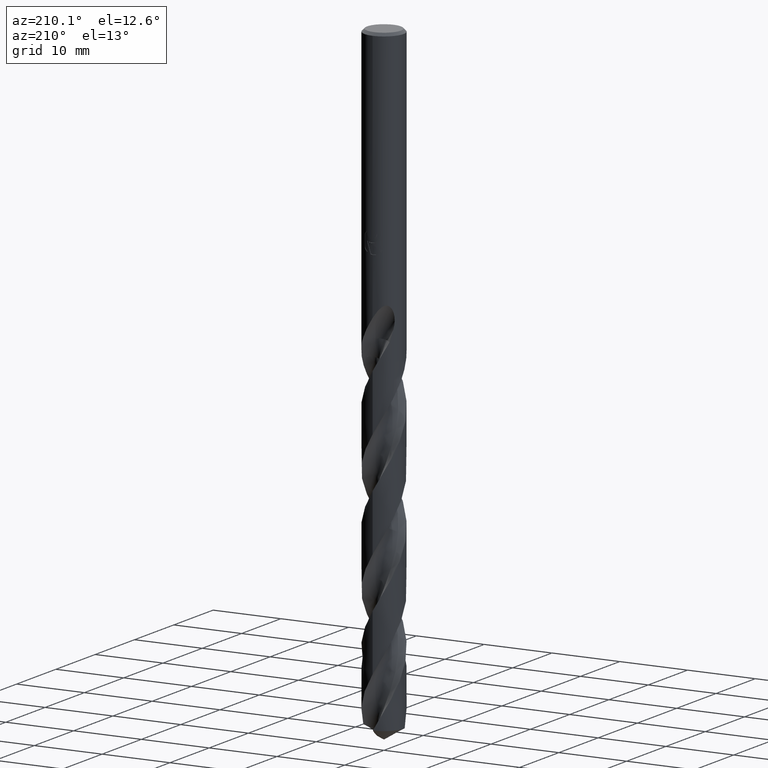
[diagram: clean part render]
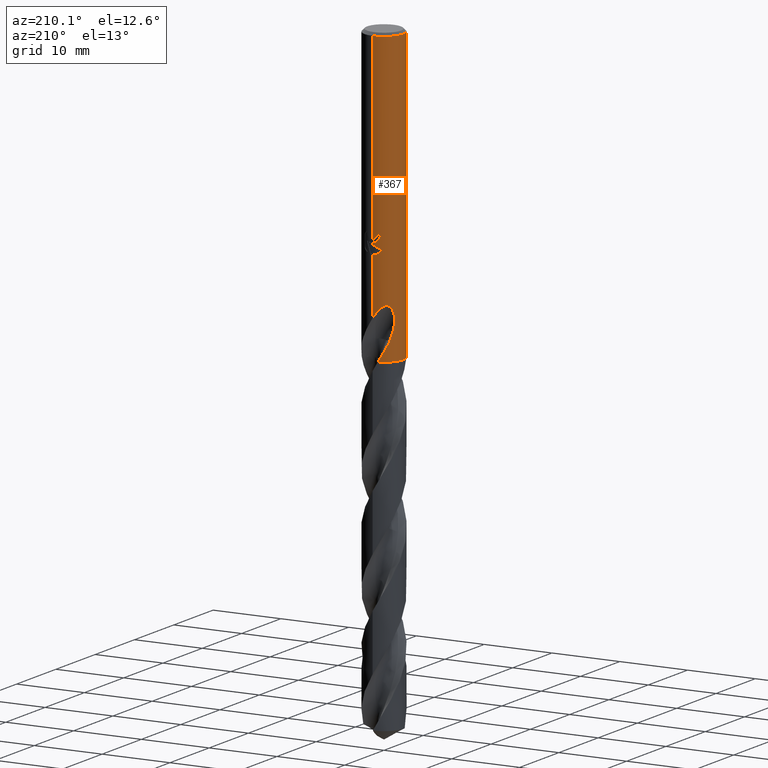
[diagram: same view with one face highlighted and labeled with its STEP entity id]
A machine part, auxiliary view. The second image highlights one B-rep face of the part: STEP entity #367.
In plain terms, the highlighted cylindrical surface (edge-blend (fillet) strip) has radius 2.9 mm, axis along (-0, -0, 1).
Its self-contained STEP definition (entity closure, byte-faithful):
#291=EDGE_CURVE('',#657,#321,#814,.T.);
#305=VERTEX_POINT('',#828);
#307=EDGE_CURVE('',#725,#371,#830,.T.);
#321=VERTEX_POINT('',#847);
#329=VERTEX_POINT('',#855);
#363=EDGE_CURVE('',#589,#457,#892,.T.);
#367=ADVANCED_FACE('',(#897),#898,.T.);
#371=VERTEX_POINT('',#902);
#401=VERTEX_POINT('',#936);
#405=EDGE_CURVE('',#457,#441,#941,.T.);
#423=VERTEX_POINT('',#961);
#425=EDGE_CURVE('',#305,#687,#963,.T.);
#441=VERTEX_POINT('',#980);
#443=EDGE_CURVE('',#321,#329,#982,.T.);
#457=VERTEX_POINT('',#996);
#473=EDGE_CURVE('',#741,#537,#1013,.T.);
#499=EDGE_CURVE('',#607,#677,#1042,.T.);
#505=VERTEX_POINT('',#1048);
#537=VERTEX_POINT('',#1083);
#545=EDGE_CURVE('',#423,#329,#1091,.T.);
#557=EDGE_CURVE('',#687,#505,#1104,.T.);
#563=EDGE_CURVE('',#537,#657,#1110,.T.);
#589=VERTEX_POINT('',#1138);
#599=EDGE_CURVE('',#371,#401,#1149,.T.);
#601=EDGE_CURVE('',#423,#607,#1151,.T.);
#607=VERTEX_POINT('',#1158);
#653=EDGE_CURVE('',#677,#725,#1210,.T.);
#657=VERTEX_POINT('',#1214);
#669=EDGE_CURVE('',#505,#741,#1228,.T.);
#677=VERTEX_POINT('',#1236);
#687=VERTEX_POINT('',#1248);
#705=EDGE_CURVE('',#401,#589,#1267,.T.);
#725=VERTEX_POINT('',#1288);
#741=VERTEX_POINT('',#1305);
#765=EDGE_CURVE('',#441,#305,#1332,.T.);
#814=B_SPLINE_CURVE_WITH_KNOTS('',3,(#1380,#1381,#1382,#1383),.UNSPECIFIED.,.F.,.F.,(4,4),(0.0,1.66668771534072),.UNSPECIFIED.);
#828=CARTESIAN_POINT('',(2.06254272401591E-016,2.9,-27.5000801551881));
#830=CIRCLE('',#1405,2.9);
#847=CARTESIAN_POINT('',(-2.01572429288359,2.08491140700965,-40.3898));
#855=CARTESIAN_POINT('',(-0.711667829307871,2.81132155768923,-43.0));
#892=B_SPLINE_CURVE_WITH_KNOTS('',3,(#3279,#3280,#3281,#3282,#3283,#3284,#3285,#3286,#3287,#3288,#3289,#3290,#3291,#3292,#3293,#3294,#3295,#3296,#3297,#3298,#3299,#3300,#3301,#3302,#3303,#3304,#3305),.UNSPECIFIED.,.F.,.F.,(4,2,3,2,2,2,2,2,2,2,2,2,4),(-0.544430425757942,-0.272215212878971,0.0,0.272215212878969,0.544430425757938,0.818316912062376,1.09220339836681,1.36319106770126,1.63417873703571,1.90601948749289,2.17786023795006,2.44970098840723,2.7215417388644),.UNSPECIFIED.);
#897=FACE_OUTER_BOUND('',#3310,.T.);
#898=CYLINDRICAL_SURFACE('',#3311,2.9);
#902=CARTESIAN_POINT('',(0.0,2.9,-0.399999999999999));
#936=CARTESIAN_POINT('',(3.1168337840855E-015,2.9,-27.0232688117743));
#941=CIRCLE('',#3521,2.9);
#961=CARTESIAN_POINT('',(-2.74120500778192,-0.946464529346626,-43.0));
#963=LINE('',#4231,#4232);
#980=CARTESIAN_POINT('',(-1.0350734039088,2.70898930387712,-26.3171221986971));
#982=B_SPLINE_CURVE_WITH_KNOTS('',3,(#4496,#4497,#4498,#4499,#4500,#4501,#4502,#4503,#4504,#4505),.UNSPECIFIED.,.F.,.F.,(4,2,2,2,4),(0.0,0.778750457868254,1.48585457779052,2.12632077784442,2.76428892109152),.UNSPECIFIED.);
#996=CARTESIAN_POINT('',(-0.562333990228013,2.84495702664104,-26.3171221986971));
#1013=LINE('',#4579,#4580);
#1042=B_SPLINE_CURVE_WITH_KNOTS('',3,(#5178,#5179,#5180,#5181,#5182,#5183,#5184,#5185,#5186,#5187,#5188,#5189,#5190,#5191,#5192,#5193,#5194,#5195,#5196,#5197,#5198,#5199,#5200,#5201,#5202,#5203,#5204,#5205,#5206,#5207),.UNSPECIFIED.,.F.,.F.,(4,2,2,2,2,2,2,2,2,2,2,2,2,2,4),(0.0,1.42083954617594,2.19665046974081,2.89934003743982,3.71569641668539,4.69632698441086,5.54625631413262,5.93141498280162,6.21291901045327,6.47930414935623,6.81722957885789,7.31162818944072,8.01447394372956,8.47441253554976,8.95777676593161),.UNSPECIFIED.);
#1048=CARTESIAN_POINT('',(-1.337052752443,2.57338103225788,-28.3720803908795));
#1083=CARTESIAN_POINT('',(-8.60822456610726E-013,2.9,-37.3071607577198));
#1091=CIRCLE('',#6331,2.9);
#1104=ELLIPSE('',#6474,3.2332924529243,2.9);
#1110=B_SPLINE_CURVE_WITH_KNOTS('',3,(#6553,#6554,#6555,#6556,#6557,#6558,#6559,#6560,#6561,#6562,#6563,#6564,#6565,#6566,#6567,#6568,#6569,#6570,#6571,#6572,#6573,#6574,#6575,#6576,#6577,#6578,#6579,#6580,#6581,#6582),.UNSPECIFIED.,.F.,.F.,(4,2,2,2,2,2,2,2,2,2,2,2,2,2,4),(0.0,1.42083954617593,2.19665046974083,2.89934003744003,3.71569641668575,4.6963269844112,5.546256314133,5.93141498280203,6.2129190104538,6.47930414935694,6.81722957885879,7.31162818944434,8.01447394374062,8.47441253556545,8.95777676595213),.UNSPECIFIED.);
#1138=CARTESIAN_POINT('',(-0.486378944383046,2.85892209100927,-26.6432837483006));
#1149=LINE('',#6751,#6752);
#1151=B_SPLINE_CURVE_WITH_KNOTS('',3,(#6755,#6756,#6757,#6758,#6759,#6760,#6761,#6762,#6763,#6764),.UNSPECIFIED.,.F.,.F.,(4,2,2,2,4),(0.0,0.382410701119258,1.70511081106497,2.27138613274808,2.9969723209163),.UNSPECIFIED.);
#1158=CARTESIAN_POINT('',(-1.84792547564619,-2.23498801707253,-40.3898));
#1210=LINE('',#9225,#9226);
#1214=CARTESIAN_POINT('',(-2.35956227351357,1.68596141041587,-38.8018173349643));
#1228=B_SPLINE_CURVE_WITH_KNOTS('',3,(#9247,#9248,#9249,#9250,#9251,#9252,#9253,#9254,#9255,#9256,#9257,#9258,#9259,#9260,#9261,#9262),.UNSPECIFIED.,.F.,.F.,(4,2,2,2,2,2,2,4),(5.67214035143818,6.30408266405433,6.61911561083196,6.93414855760959,7.24918150438723,7.56421445116486,7.87774285193221,8.19127125269955),.UNSPECIFIED.);
#1236=CARTESIAN_POINT('',(8.57380765234388E-013,-2.9,-37.3071607577198));
#1248=CARTESIAN_POINT('',(-5.33762488795289E-016,2.9,-27.7128911336578));
#1267=B_SPLINE_CURVE_WITH_KNOTS('',3,(#10119,#10120,#10121,#10122,#10123,#10124,#10125,#10126,#10127,#10128,#10129,#10130,#10131,#10132,#10133,#10134,#10135,#10136,#10137,#10138,#10139,#10140,#10141,#10142,#10143,#10144,#10145),.UNSPECIFIED.,.F.,.F.,(4,2,3,2,2,2,2,2,2,2,2,2,4),(-0.544430425757942,-0.272215212878971,0.0,0.272215212878969,0.544430425757938,0.818316912062376,1.09220339836681,1.36319106770126,1.63417873703571,1.90601948749289,2.17786023795006,2.44970098840723,2.7215417388644),.UNSPECIFIED.);
#1288=CARTESIAN_POINT('',(3.55135842608489E-016,-2.9,-0.399999999999999));
#1305=CARTESIAN_POINT('',(-1.44945831354929E-017,2.9,-29.0310253601033));
#1332=B_SPLINE_CURVE_WITH_KNOTS('',3,(#12023,#12024,#12025,#12026,#12027,#12028,#12029,#12030,#12031,#12032,#12033,#12034,#12035,#12036),.UNSPECIFIED.,.F.,.F.,(4,2,2,2,2,2,4),(3.16342687816,3.61440887281233,4.06539086746466,4.51637286211699,4.96437759003098,5.41238231794496,5.8681502726509),.UNSPECIFIED.);
#1380=CARTESIAN_POINT('',(-2.35956227356619,1.68596141034223,-38.8018173349932));
#1381=CARTESIAN_POINT('',(-2.26606866372252,1.8168090046308,-39.3335951298948));
#1382=CARTESIAN_POINT('',(-2.15338387416364,1.95182001463611,-39.8685375125083));
#1383=CARTESIAN_POINT('',(-2.01572429288359,2.08491140700965,-40.3898));
#1405=AXIS2_PLACEMENT_3D('',#12282,#12283,#12284);
#3279=CARTESIAN_POINT('',(0.665676548324101,2.82256527524366,-25.8141513292089));
#3280=CARTESIAN_POINT('',(0.728863694232988,2.80766315710453,-25.8775450945214));
#3281=CARTESIAN_POINT('',(0.783893212152744,2.79230564675326,-25.9578619064315));
#3282=CARTESIAN_POINT('',(0.857175719177571,2.7706875010605,-26.1345175781973));
#3283=CARTESIAN_POINT('',(0.875400981188567,2.76471935684874,-26.2309036082938));
#3284=CARTESIAN_POINT('',(0.875400981188567,2.76471935684874,-26.3216420125868));
#3285=CARTESIAN_POINT('',(0.875400981188567,2.76471935684874,-26.4123804168798));
#3286=CARTESIAN_POINT('',(0.857175719177571,2.7706875010605,-26.5087664469763));
#3287=CARTESIAN_POINT('',(0.783893212152744,2.79230564675326,-26.685422118742));
#3288=CARTESIAN_POINT('',(0.728863694232987,2.80766315710453,-26.7657389306522));
#3289=CARTESIAN_POINT('',(0.60210146304668,2.83755888538195,-26.8929156691917));
#3290=CARTESIAN_POINT('',(0.521571754956642,2.85411813914344,-26.9483263198779));
#3291=CARTESIAN_POINT('',(0.344388193992535,2.88087212822545,-27.0221413287664));
#3292=CARTESIAN_POINT('',(0.247688805712561,2.89084505344222,-27.0405166027747));
#3293=CARTESIAN_POINT('',(0.0663288400845516,2.90064817817,-27.0405166027747));
#3294=CARTESIAN_POINT('',(-0.0299223467702433,2.90119712730522,-27.0224882342443));
#3295=CARTESIAN_POINT('',(-0.206863595966666,2.8939674447602,-26.9492535743946));
#3296=CARTESIAN_POINT('',(-0.287567535567111,2.88642047926432,-26.8940581260475));
#3297=CARTESIAN_POINT('',(-0.415170553794711,2.87084963933989,-26.7667187450904));
#3298=CARTESIAN_POINT('',(-0.47057995685651,2.8618090960253,-26.6859551503447));
#3299=CARTESIAN_POINT('',(-0.544174942931738,2.84873137693834,-26.5087356809639));
#3300=CARTESIAN_POINT('',(-0.562348199187247,2.84495421806237,-26.4122555960725));
#3301=CARTESIAN_POINT('',(-0.562348199187247,2.84495421806237,-26.2310284291011));
#3302=CARTESIAN_POINT('',(-0.544174942931737,2.84873137693834,-26.1345483442097));
#3303=CARTESIAN_POINT('',(-0.470579956856509,2.8618090960253,-25.9573288748289));
#3304=CARTESIAN_POINT('',(-0.415170553794712,2.87084963933989,-25.8765652800831));
#3305=CARTESIAN_POINT('',(-0.351268777522742,2.87864729446622,-25.8127955296058));
#3310=EDGE_LOOP('',(#12341,#12342,#12343,#12344,#12345,#12346,#12347,#12348,#12349,#12350,#12351,#12352,#12353,#12354,#12355,#12356,#12357));
#3311=AXIS2_PLACEMENT_3D('',#12358,#12359,#12360);
#3521=AXIS2_PLACEMENT_3D('',#12433,#12434,#12435);
#4231=CARTESIAN_POINT('',(-3.55135842608489E-016,2.9,-39.5));
#4232=VECTOR('',#12456,1.0);
#4496=CARTESIAN_POINT('',(-2.01572429288359,2.08491140700965,-40.3898));
#4497=CARTESIAN_POINT('',(-1.92679307672682,2.17089146937594,-40.6180153672509));
#4498=CARTESIAN_POINT('',(-1.83043296082877,2.25353452736419,-40.8439903122496));
#4499=CARTESIAN_POINT('',(-1.6192101049954,2.40909592301126,-41.2869770720676));
#4500=CARTESIAN_POINT('',(-1.51082831432536,2.47906114058522,-41.5034469554388));
#4501=CARTESIAN_POINT('',(-1.28437696449189,2.60296506836087,-41.9467846128498));
#4502=CARTESIAN_POINT('',(-1.17334011249835,2.65484570882853,-42.1584335163476));
#4503=CARTESIAN_POINT('',(-0.946282188162448,2.74396911757146,-42.5799846549973));
#4504=CARTESIAN_POINT('',(-0.830104248823766,2.78134014579513,-42.7899284929459));
#4505=CARTESIAN_POINT('',(-0.711667829307837,2.81132155768925,-43.0));
#4579=CARTESIAN_POINT('',(-3.55135842608489E-016,2.9,-39.5));
#4580=VECTOR('',#12484,1.0);
#5178=CARTESIAN_POINT('',(-1.84792547564619,-2.23498801707253,-40.3898));
#5179=CARTESIAN_POINT('',(-1.65663079179807,-2.39315366133475,-39.9864398394409));
#5180=CARTESIAN_POINT('',(-1.43668517259396,-2.53375194231006,-39.6103781530684));
#5181=CARTESIAN_POINT('',(-1.05316555011375,-2.70608458548398,-38.9821412885959));
#5182=CARTESIAN_POINT('',(-0.915157262234056,-2.75565814054511,-38.76110656544));
#5183=CARTESIAN_POINT('',(-0.647990649954758,-2.82974754007943,-38.3332405862834));
#5184=CARTESIAN_POINT('',(-0.520025227792488,-2.85592315086429,-38.1284036971421));
#5185=CARTESIAN_POINT('',(-0.243033984689579,-2.89370103012799,-37.686925765208));
#5186=CARTESIAN_POINT('',(-0.0916944633726937,-2.90257024047427,-37.4468290562601));
#5187=CARTESIAN_POINT('',(0.244391837179548,-2.89550080802578,-36.9331829809862));
#5188=CARTESIAN_POINT('',(0.443657038957402,-2.87363514075176,-36.6409127520134));
#5189=CARTESIAN_POINT('',(0.827914219695079,-2.78533110840759,-36.1589793024214));
#5190=CARTESIAN_POINT('',(1.04050835718102,-2.71805458197395,-35.9238146236942));
#5191=CARTESIAN_POINT('',(1.36226746704383,-2.56254699889532,-35.7036066267315));
#5192=CARTESIAN_POINT('',(1.46877183673063,-2.50383932369431,-35.6491844298009));
#5193=CARTESIAN_POINT('',(1.65539198018418,-2.38295877258993,-35.6073784312406));
#5194=CARTESIAN_POINT('',(1.73193538129801,-2.3279088613869,-35.606597816555));
#5195=CARTESIAN_POINT('',(1.87450160029743,-2.21451753483204,-35.6431867923364));
#5196=CARTESIAN_POINT('',(1.93685295096312,-2.1597517872856,-35.6774922024973));
#5197=CARTESIAN_POINT('',(2.06373725746994,-2.03973692856485,-35.7848298817434));
#5198=CARTESIAN_POINT('',(2.12243968003889,-1.97754221565494,-35.8640794470911));
#5199=CARTESIAN_POINT('',(2.24268122226725,-1.84173550702624,-36.0810893669906));
#5200=CARTESIAN_POINT('',(2.30015428301038,-1.76777903958924,-36.2420465982693));
#5201=CARTESIAN_POINT('',(2.40823024712364,-1.6192753859184,-36.6923870279518));
#5202=CARTESIAN_POINT('',(2.44730220747963,-1.55601997266771,-37.0131134449059));
#5203=CARTESIAN_POINT('',(2.46664129167666,-1.5250865438702,-37.6066999961103));
#5204=CARTESIAN_POINT('',(2.46209409719004,-1.53262622518153,-37.8430960799113));
#5205=CARTESIAN_POINT('',(2.42997671490089,-1.58308322437237,-38.3228620118863));
#5206=CARTESIAN_POINT('',(2.4012997051985,-1.62754840725418,-38.564426044433));
#5207=CARTESIAN_POINT('',(2.35956227351357,-1.68596141041588,-38.8018173349643));
#6331=AXIS2_PLACEMENT_3D('',#12546,#12547,#12548);
#6474=AXIS2_PLACEMENT_3D('',#12573,#12574,#12575);
#6553=CARTESIAN_POINT('',(1.84792547564619,2.23498801707253,-40.3898));
#6554=CARTESIAN_POINT('',(1.65663079179808,2.39315366133475,-39.9864398394409));
#6555=CARTESIAN_POINT('',(1.43668517259397,2.53375194231006,-39.6103781530684));
#6556=CARTESIAN_POINT('',(1.05316555011374,2.70608458548399,-38.9821412885959));
#6557=CARTESIAN_POINT('',(0.915157262234028,2.75565814054512,-38.7611065654399));
#6558=CARTESIAN_POINT('',(0.647990649954758,2.82974754007943,-38.3332405862834));
#6559=CARTESIAN_POINT('',(0.520025227792486,2.85592315086429,-38.1284036971421));
#6560=CARTESIAN_POINT('',(0.243033984689592,2.89370103012799,-37.686925765208));
#6561=CARTESIAN_POINT('',(0.0916944633726974,2.90257024047427,-37.4468290562601));
#6562=CARTESIAN_POINT('',(-0.244391837179521,2.89550080802578,-36.9331829809863));
#6563=CARTESIAN_POINT('',(-0.443657038957393,2.87363514075176,-36.6409127520134));
#6564=CARTESIAN_POINT('',(-0.827914219695103,2.78533110840759,-36.1589793024214));
#6565=CARTESIAN_POINT('',(-1.04050835718103,2.71805458197394,-35.9238146236942));
#6566=CARTESIAN_POINT('',(-1.36226746704383,2.56254699889531,-35.7036066267315));
#6567=CARTESIAN_POINT('',(-1.46877183673064,2.50383932369431,-35.6491844298009));
#6568=CARTESIAN_POINT('',(-1.65539198018421,2.38295877258991,-35.6073784312406));
#6569=CARTESIAN_POINT('',(-1.73193538129802,2.32790886138689,-35.606597816555));
#6570=CARTESIAN_POINT('',(-1.87450160029743,2.21451753483204,-35.6431867923364));
#6571=CARTESIAN_POINT('',(-1.93685295096312,2.15975178728559,-35.6774922024973));
#6572=CARTESIAN_POINT('',(-2.06373725746993,2.03973692856486,-35.7848298817434));
#6573=CARTESIAN_POINT('',(-2.12243968003887,1.97754221565496,-35.8640794470911));
#6574=CARTESIAN_POINT('',(-2.24268122226763,1.84173550702581,-36.0810893669913));
#6575=CARTESIAN_POINT('',(-2.30015428301064,1.76777903958889,-36.2420465982704));
#6576=CARTESIAN_POINT('',(-2.40823024712361,1.61927538591845,-36.6923870279517));
#6577=CARTESIAN_POINT('',(-2.44730220747962,1.55601997266771,-37.0131134449057));
#6578=CARTESIAN_POINT('',(-2.46664129167667,1.52508654387019,-37.6066999961103));
#6579=CARTESIAN_POINT('',(-2.46209409719004,1.53262622518152,-37.8430960799113));
#6580=CARTESIAN_POINT('',(-2.42997671490089,1.58308322437236,-38.3228620118863));
#6581=CARTESIAN_POINT('',(-2.4012997051985,1.62754840725418,-38.564426044433));
#6582=CARTESIAN_POINT('',(-2.35956227351357,1.68596141041587,-38.8018173349643));
#6751=CARTESIAN_POINT('',(-3.55135842608489E-016,2.9,-39.5));
#6752=VECTOR('',#12613,1.0);
#6755=CARTESIAN_POINT('',(-2.74120500778192,-0.946464529346626,-43.0));
#6756=CARTESIAN_POINT('',(-2.72015179855626,-1.00744004482539,-42.890057245011));
#6757=CARTESIAN_POINT('',(-2.69716058792417,-1.06746462707836,-42.7814530155321));
#6758=CARTESIAN_POINT('',(-2.58546585656701,-1.33232380702781,-42.2927449746751));
#6759=CARTESIAN_POINT('',(-2.47782553044956,-1.52163346975659,-41.9195486328416));
#6760=CARTESIAN_POINT('',(-2.30090593096939,-1.76750603591543,-41.3678347669661));
#6761=CARTESIAN_POINT('',(-2.22101506238967,-1.86732277069645,-41.1215485540921));
#6762=CARTESIAN_POINT('',(-2.06984944933112,-2.03514536647583,-40.7592220981273));
#6763=CARTESIAN_POINT('',(-1.96897454339668,-2.13490262315066,-40.5705567835625));
#6764=CARTESIAN_POINT('',(-1.84792547564619,-2.23498801707253,-40.3898));
#9225=CARTESIAN_POINT('',(3.55135842608489E-016,-2.9,-39.5));
#9226=VECTOR('',#12673,1.0);
#9247=CARTESIAN_POINT('',(-1.53030716624862,2.46336354948434,-28.0324564840599));
#9248=CARTESIAN_POINT('',(-1.4466942304792,2.51530601785108,-28.2318415090869));
#9249=CARTESIAN_POINT('',(-1.32266428151737,2.585483390834,-28.4114175057601));
#9250=CARTESIAN_POINT('',(-1.1098980271998,2.68032308449508,-28.6244343865918));
#9251=CARTESIAN_POINT('',(-1.02977366248525,2.71259333209196,-28.6913840322767));
#9252=CARTESIAN_POINT('',(-0.854397648340867,2.77283267428711,-28.8102421795774));
#9253=CARTESIAN_POINT('',(-0.759138271162322,2.80076155269052,-28.8621596574053));
#9254=CARTESIAN_POINT('',(-0.559028747138177,2.84746256749671,-28.9462134483864));
#9255=CARTESIAN_POINT('',(-0.453981517330648,2.86625011728594,-28.9784163595393));
#9256=CARTESIAN_POINT('',(-0.241153672351089,2.89194292116511,-29.020953938204));
#9257=CARTESIAN_POINT('',(-0.133368129358895,2.89883429130855,-29.0312723335086));
#9258=CARTESIAN_POINT('',(0.0761422993156204,2.90088341353653,-29.0312723335086));
#9259=CARTESIAN_POINT('',(0.183550905189772,2.89615111010668,-29.0210503930048));
#9260=CARTESIAN_POINT('',(0.39585820397072,2.87483538131936,-28.9787742416539));
#9261=CARTESIAN_POINT('',(0.500761275544576,2.85826606607705,-28.9467349083552));
#9262=CARTESIAN_POINT('',(0.600753479930381,2.83709274722409,-28.9048599956998));
#10119=CARTESIAN_POINT('',(0.665676548324101,2.82256527524366,-25.8141513292089));
#10120=CARTESIAN_POINT('',(0.728863694232988,2.80766315710453,-25.8775450945214));
#10121=CARTESIAN_POINT('',(0.783893212152744,2.79230564675326,-25.9578619064315));
#10122=CARTESIAN_POINT('',(0.857175719177571,2.7706875010605,-26.1345175781973));
#10123=CARTESIAN_POINT('',(0.875400981188567,2.76471935684874,-26.2309036082938));
#10124=CARTESIAN_POINT('',(0.875400981188567,2.76471935684874,-26.3216420125868));
#10125=CARTESIAN_POINT('',(0.875400981188567,2.76471935684874,-26.4123804168798));
#10126=CARTESIAN_POINT('',(0.857175719177571,2.7706875010605,-26.5087664469763));
#10127=CARTESIAN_POINT('',(0.783893212152744,2.79230564675326,-26.685422118742));
#10128=CARTESIAN_POINT('',(0.728863694232987,2.80766315710453,-26.7657389306522));
#10129=CARTESIAN_POINT('',(0.60210146304668,2.83755888538195,-26.8929156691917));
#10130=CARTESIAN_POINT('',(0.521571754956642,2.85411813914344,-26.9483263198779));
#10131=CARTESIAN_POINT('',(0.344388193992535,2.88087212822545,-27.0221413287664));
#10132=CARTESIAN_POINT('',(0.247688805712561,2.89084505344222,-27.0405166027747));
#10133=CARTESIAN_POINT('',(0.0663288400845516,2.90064817817,-27.0405166027747));
#10134=CARTESIAN_POINT('',(-0.0299223467702433,2.90119712730522,-27.0224882342443));
#10135=CARTESIAN_POINT('',(-0.206863595966666,2.8939674447602,-26.9492535743946));
#10136=CARTESIAN_POINT('',(-0.287567535567111,2.88642047926432,-26.8940581260475));
#10137=CARTESIAN_POINT('',(-0.415170553794711,2.87084963933989,-26.7667187450904));
#10138=CARTESIAN_POINT('',(-0.47057995685651,2.8618090960253,-26.6859551503447));
#10139=CARTESIAN_POINT('',(-0.544174942931738,2.84873137693834,-26.5087356809639));
#10140=CARTESIAN_POINT('',(-0.562348199187247,2.84495421806237,-26.4122555960725));
#10141=CARTESIAN_POINT('',(-0.562348199187247,2.84495421806237,-26.2310284291011));
#10142=CARTESIAN_POINT('',(-0.544174942931737,2.84873137693834,-26.1345483442097));
#10143=CARTESIAN_POINT('',(-0.470579956856509,2.8618090960253,-25.9573288748289));
#10144=CARTESIAN_POINT('',(-0.415170553794712,2.87084963933989,-25.8765652800831));
#10145=CARTESIAN_POINT('',(-0.351268777522742,2.87864729446622,-25.8127955296058));
#12023=CARTESIAN_POINT('',(-0.943954215518797,2.74207046572554,-25.870917147402));
#12024=CARTESIAN_POINT('',(-1.00474559497808,2.72114313556814,-26.0166816204894));
#12025=CARTESIAN_POINT('',(-1.03510901790186,2.70897569591501,-26.175974529182));
#12026=CARTESIAN_POINT('',(-1.03510901790186,2.70897569591501,-26.4766291922836));
#12027=CARTESIAN_POINT('',(-1.00474559497808,2.72114313556814,-26.6359221009762));
#12028=CARTESIAN_POINT('',(-0.883162836059717,2.76299779588324,-26.9274510471509));
#12029=CARTESIAN_POINT('',(-0.792002181884946,2.79184513862034,-27.0598315130984));
#12030=CARTESIAN_POINT('',(-0.582819999096528,2.84285667062854,-27.268249594369));
#12031=CARTESIAN_POINT('',(-0.450650808091709,2.86849928815854,-27.3588171859287));
#12032=CARTESIAN_POINT('',(-0.159876106060544,2.89927817695709,-27.4794100318322));
#12033=CARTESIAN_POINT('',(-0.00118266945736722,2.90384219895469,-27.5093686300866));
#12034=CARTESIAN_POINT('',(0.29968254444311,2.88847206401858,-27.5093686300866));
#12035=CARTESIAN_POINT('',(0.459588931962075,2.86722455650358,-27.478471473702));
#12036=CARTESIAN_POINT('',(0.605299401178298,2.83612634325997,-27.4173956221368));
#12282=CARTESIAN_POINT('',(0.0,0.0,-0.399999999999999));
#12283=DIRECTION('',(0.0,0.0,-1.0));
#12284=DIRECTION('',(0.0,1.0,0.0));
#12341=ORIENTED_EDGE('',*,*,#599,.T.);
#12342=ORIENTED_EDGE('',*,*,#705,.T.);
#12343=ORIENTED_EDGE('',*,*,#363,.T.);
#12344=ORIENTED_EDGE('',*,*,#405,.T.);
#12345=ORIENTED_EDGE('',*,*,#765,.T.);
#12346=ORIENTED_EDGE('',*,*,#425,.T.);
#12347=ORIENTED_EDGE('',*,*,#557,.T.);
#12348=ORIENTED_EDGE('',*,*,#669,.T.);
#12349=ORIENTED_EDGE('',*,*,#473,.T.);
#12350=ORIENTED_EDGE('',*,*,#563,.T.);
#12351=ORIENTED_EDGE('',*,*,#291,.T.);
#12352=ORIENTED_EDGE('',*,*,#443,.T.);
#12353=ORIENTED_EDGE('',*,*,#545,.F.);
#12354=ORIENTED_EDGE('',*,*,#601,.T.);
#12355=ORIENTED_EDGE('',*,*,#499,.T.);
#12356=ORIENTED_EDGE('',*,*,#653,.T.);
#12357=ORIENTED_EDGE('',*,*,#307,.T.);
#12358=CARTESIAN_POINT('',(0.0,0.0,-39.5));
#12359=DIRECTION('',(-0.0,-0.0,1.0));
#12360=DIRECTION('',(0.0,1.0,0.0));
#12433=CARTESIAN_POINT('',(0.0,0.0,-26.3171221986971));
#12434=DIRECTION('',(0.0,-0.0,1.0));
#12435=DIRECTION('',(0.0,1.0,0.0));
#12456=DIRECTION('',(0.0,0.0,-1.0));
#12484=DIRECTION('',(0.0,0.0,-1.0));
#12546=CARTESIAN_POINT('',(0.0,0.0,-43.0));
#12547=DIRECTION('',(0.0,0.0,-1.0));
#12548=DIRECTION('',(0.0,1.0,0.0));
#12573=CARTESIAN_POINT('',(0.0,0.0,-27.7128911336578));
#12574=DIRECTION('',(-0.442195774284071,0.0,0.896918556617774));
#12575=DIRECTION('',(0.896918556617774,-0.0,0.442195774284071));
#12613=DIRECTION('',(0.0,0.0,-1.0));
#12673=DIRECTION('',(-0.0,-0.0,1.0));